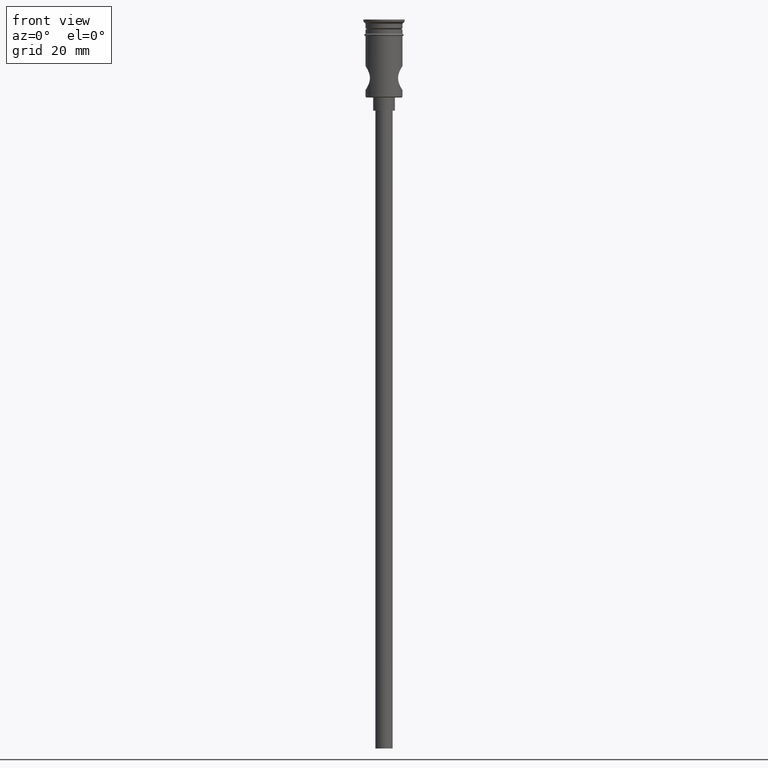
[diagram: clean part render]
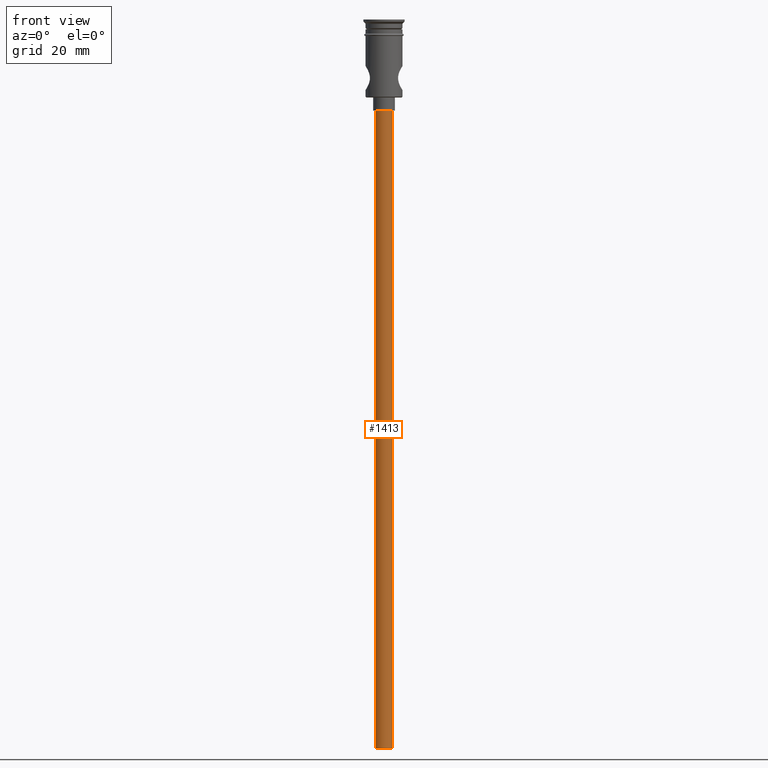
[diagram: same view with one face highlighted and labeled with its STEP entity id]
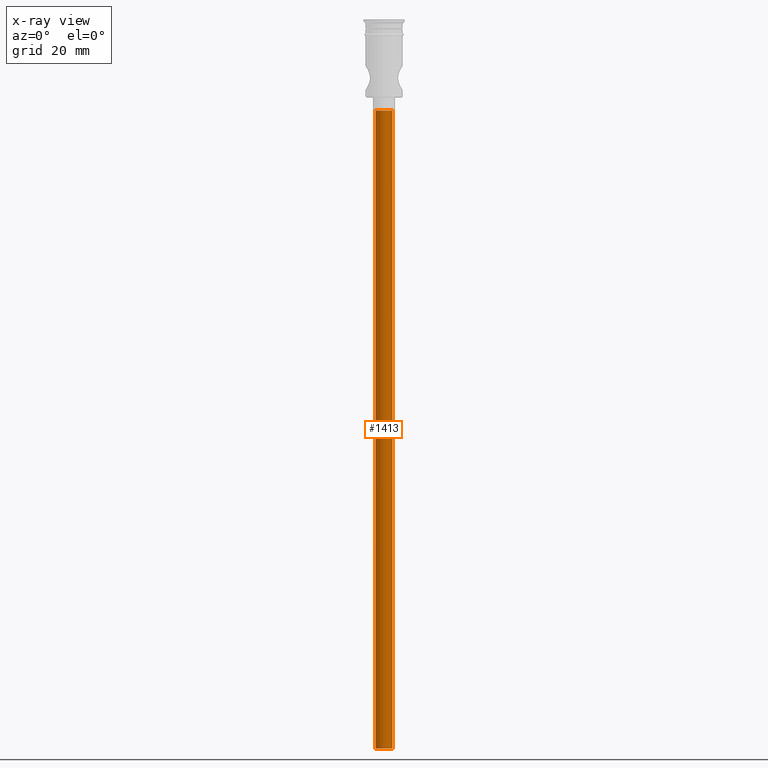
[diagram: x-ray of the same camera — body ghosted, the highlighted face saturated]
A machine part, front view. The second image highlights one B-rep face of the part: STEP entity #1413.
The next image is the same camera in x-ray: the body ghosted, the highlighted face saturated — about 0% of this face is hidden behind the body in this view.
In plain terms, the highlighted cylindrical surface (edge-blend (fillet) strip) has radius 2 mm, axis along (-0, -0, 1).
Its self-contained STEP definition (entity closure, byte-faithful):
#23 = VERTEX_POINT ( 'NONE', #323 ) ;
#32 = VERTEX_POINT ( 'NONE', #212 ) ;
#63 = CYLINDRICAL_SURFACE ( 'NONE', #932, 2.000000000000000000 ) ;
#121 = CARTESIAN_POINT ( 'NONE',  ( -2.000000000000000000, 2.449293598294706414E-16, -167.9999999999999716 ) ) ;
#159 = CARTESIAN_POINT ( 'NONE',  ( 2.000000000000000000, 0.000000000000000000, -167.9999999999999716 ) ) ;
#183 = VECTOR ( 'NONE', #443, 1000.000000000000000 ) ;
#212 = CARTESIAN_POINT ( 'NONE',  ( -2.000000000000000000, 2.449293598294706414E-16, -167.9999999999999716 ) ) ;
#239 = CARTESIAN_POINT ( 'NONE',  ( 2.000000000000000000, 0.000000000000000000, -20.99999999999999645 ) ) ;
#251 = ORIENTED_EDGE ( 'NONE', *, *, #987, .T. ) ;
#258 = LINE ( 'NONE', #159, #1096 ) ;
#268 = ORIENTED_EDGE ( 'NONE', *, *, #704, .T. ) ;
#323 = CARTESIAN_POINT ( 'NONE',  ( -2.000000000000000000, 2.449293598294706414E-16, -20.99999999999999645 ) ) ;
#443 = DIRECTION ( 'NONE',  ( -0.000000000000000000, -0.000000000000000000, 1.000000000000000000 ) ) ;
#490 = DIRECTION ( 'NONE',  ( -1.000000000000000000, 0.000000000000000000, 0.000000000000000000 ) ) ;
#506 = CARTESIAN_POINT ( 'NONE',  ( 0.000000000000000000, 0.000000000000000000, -167.9999999999999716 ) ) ;
#570 = DIRECTION ( 'NONE',  ( -0.000000000000000000, -0.000000000000000000, 1.000000000000000000 ) ) ;
#583 = AXIS2_PLACEMENT_3D ( 'NONE', #633, #1417, #966 ) ;
#590 = CARTESIAN_POINT ( 'NONE',  ( 0.000000000000000000, 0.000000000000000000, -167.9999999999999716 ) ) ;
#633 = CARTESIAN_POINT ( 'NONE',  ( 0.000000000000000000, 0.000000000000000000, -20.99999999999999645 ) ) ;
#674 = AXIS2_PLACEMENT_3D ( 'NONE', #590, #1036, #490 ) ;
#704 = EDGE_CURVE ( 'NONE', #1214, #23, #1276, .T. ) ;
#728 = VERTEX_POINT ( 'NONE', #1404 ) ;
#864 = EDGE_CURVE ( 'NONE', #728, #32, #1304, .T. ) ;
#932 = AXIS2_PLACEMENT_3D ( 'NONE', #506, #1178, #934 ) ;
#934 = DIRECTION ( 'NONE',  ( 1.000000000000000000, 0.000000000000000000, 0.000000000000000000 ) ) ;
#966 = DIRECTION ( 'NONE',  ( -1.000000000000000000, 0.000000000000000000, 0.000000000000000000 ) ) ;
#987 = EDGE_CURVE ( 'NONE', #728, #1214, #258, .T. ) ;
#1036 = DIRECTION ( 'NONE',  ( 0.000000000000000000, 0.000000000000000000, -1.000000000000000000 ) ) ;
#1087 = ORIENTED_EDGE ( 'NONE', *, *, #1151, .F. ) ;
#1096 = VECTOR ( 'NONE', #570, 1000.000000000000000 ) ;
#1151 = EDGE_CURVE ( 'NONE', #32, #23, #1324, .T. ) ;
#1178 = DIRECTION ( 'NONE',  ( -0.000000000000000000, -0.000000000000000000, 1.000000000000000000 ) ) ;
#1186 = FACE_OUTER_BOUND ( 'NONE', #1254, .T. ) ;
#1214 = VERTEX_POINT ( 'NONE', #239 ) ;
#1247 = ORIENTED_EDGE ( 'NONE', *, *, #864, .F. ) ;
#1254 = EDGE_LOOP ( 'NONE', ( #1087, #1247, #251, #268 ) ) ;
#1276 = CIRCLE ( 'NONE', #583, 2.000000000000000000 ) ;
#1304 = CIRCLE ( 'NONE', #674, 2.000000000000000000 ) ;
#1324 = LINE ( 'NONE', #121, #183 ) ;
#1404 = CARTESIAN_POINT ( 'NONE',  ( 2.000000000000000000, 0.000000000000000000, -167.9999999999999716 ) ) ;
#1413 = ADVANCED_FACE ( 'NONE', ( #1186 ), #63, .T. ) ;
#1417 = DIRECTION ( 'NONE',  ( 0.000000000000000000, 0.000000000000000000, -1.000000000000000000 ) ) ;